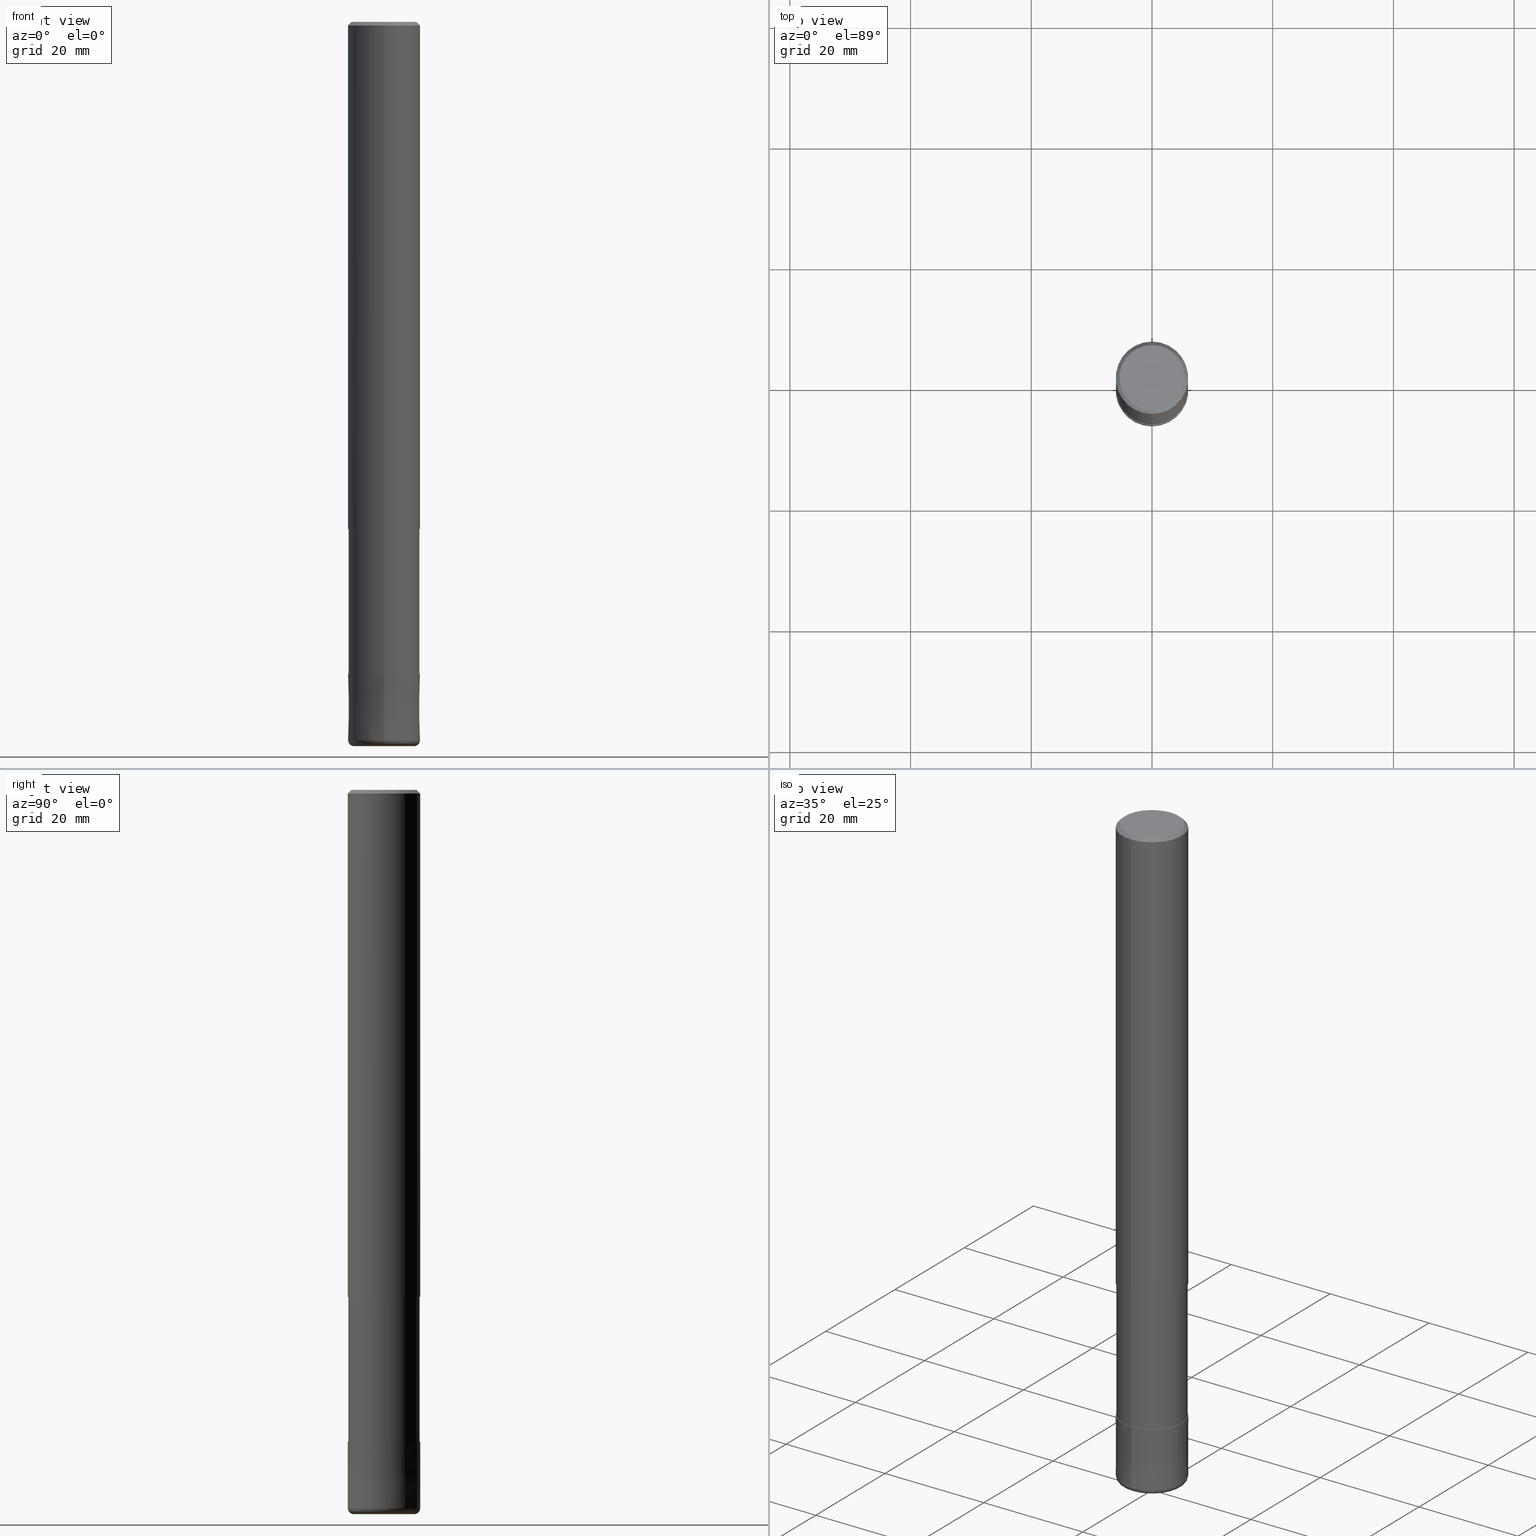
[diagram: canonical four-view strip — front | top / right | iso, engineering-drawing reading convention]
A machine part, canonical four-view strip (front | top / right | iso — engineering-drawing reading convention). The complete STEP part file that produces these views, byte-faithful:
ISO-10303-21;
HEADER;
FILE_DESCRIPTION(('no description'),'unknown implementation level');
FILE_NAME('HRRS4120-10-36-Huellk.stp','  ',('CIMSOURCE GmbH'),('CADClick - KiM GmbH - www.kimweb.de'),'unknown preprocess','ACIS','unknown authorization');
FILE_SCHEMA(('automotive_design'));
ENDSEC;
DATA;
#1=MECHANICAL_DESIGN_GEOMETRIC_PRESENTATION_REPRESENTATION(' ',(#14,#15,#16,#17,#18,#19,#20,#21,#22,#23,#24,#25,#26,#27,#28,#29,#30,#31,#32,#33,#34,#35,#36,#37,#38,#39,#40,#41,#42,#43,#44,#45,#46,#47,#48,#49,#50,#51,#52,#53,#54,#55,#56,#57,#58,#59,#60,#61,#62,#63,#64,#65,#66,#67,#68,#69,#70,#71,#72),#10);
#2=PRODUCT_DEFINITION_CONTEXT('',#73,'design');
#3=APPLICATION_PROTOCOL_DEFINITION('INTERNATIONAL STANDARD','automotive_design',1994,#73);
#4=PRODUCT_CATEGORY_RELATIONSHIP('NONE','NONE',#74,#75);
#5=SHAPE_DEFINITION_REPRESENTATION(#76,#77);
#6=PRODUCT_DEFINITION_CONTEXT('',#78,'design');
#7=APPLICATION_PROTOCOL_DEFINITION('INTERNATIONAL STANDARD','automotive_design',1994,#78);
#8=PRODUCT_CATEGORY_RELATIONSHIP('NONE','NONE',#79,#80);
#9=SHAPE_DEFINITION_REPRESENTATION(#81,#82);
#10= (GEOMETRIC_REPRESENTATION_CONTEXT(3)GLOBAL_UNCERTAINTY_ASSIGNED_CONTEXT((#85))GLOBAL_UNIT_ASSIGNED_CONTEXT((#87,#88,#89))REPRESENTATION_CONTEXT('NONE','WORKSPACE'));
#14=STYLED_ITEM('',(#91),#92);
#15=STYLED_ITEM('',(#93),#94);
#16=STYLED_ITEM('',(#95),#96);
#17=STYLED_ITEM('',(#97),#98);
#18=STYLED_ITEM('',(#99),#100);
#19=STYLED_ITEM('',(#101),#102);
#20=STYLED_ITEM('',(#103),#104);
#21=STYLED_ITEM('',(#105),#106);
#22=STYLED_ITEM('',(#107),#108);
#23=STYLED_ITEM('',(#109),#110);
#24=STYLED_ITEM('',(#111),#112);
#25=STYLED_ITEM('',(#113),#114);
#26=STYLED_ITEM('',(#115),#116);
#27=STYLED_ITEM('',(#117),#118);
#28=STYLED_ITEM('',(#119),#120);
#29=STYLED_ITEM('',(#121),#122);
#30=STYLED_ITEM('',(#123),#124);
#31=STYLED_ITEM('',(#125),#126);
#32=STYLED_ITEM('',(#127),#128);
#33=STYLED_ITEM('',(#129),#130);
#34=STYLED_ITEM('',(#131),#132);
#35=STYLED_ITEM('',(#133),#134);
#36=STYLED_ITEM('',(#135),#136);
#37=STYLED_ITEM('',(#137),#138);
#38=STYLED_ITEM('',(#139),#140);
#39=STYLED_ITEM('',(#141),#142);
#40=STYLED_ITEM('',(#143),#144);
#41=STYLED_ITEM('',(#145),#146);
#42=STYLED_ITEM('',(#147),#148);
#43=STYLED_ITEM('',(#149),#150);
#44=STYLED_ITEM('',(#151),#152);
#45=STYLED_ITEM('',(#153),#154);
#46=STYLED_ITEM('',(#155),#156);
#47=STYLED_ITEM('',(#157),#158);
#48=STYLED_ITEM('',(#159),#160);
#49=STYLED_ITEM('',(#161),#162);
#50=STYLED_ITEM('',(#163),#164);
#51=STYLED_ITEM('',(#165),#166);
#52=STYLED_ITEM('',(#167),#168);
#53=STYLED_ITEM('',(#169),#170);
#54=STYLED_ITEM('',(#171),#172);
#55=STYLED_ITEM('',(#173),#174);
#56=STYLED_ITEM('',(#175),#176);
#57=STYLED_ITEM('',(#177),#178);
#58=STYLED_ITEM('',(#179),#180);
#59=STYLED_ITEM('',(#181),#182);
#60=STYLED_ITEM('',(#183),#184);
#61=STYLED_ITEM('',(#185),#186);
#62=STYLED_ITEM('',(#187),#188);
#63=STYLED_ITEM('',(#189),#190);
#64=STYLED_ITEM('',(#191),#192);
#65=STYLED_ITEM('',(#193),#194);
#66=STYLED_ITEM('',(#195),#196);
#67=STYLED_ITEM('',(#197),#198);
#68=STYLED_ITEM('',(#199),#200);
#69=STYLED_ITEM('',(#201),#202);
#70=STYLED_ITEM('',(#203),#204);
#71=STYLED_ITEM('',(#205),#206);
#72=STYLED_ITEM('',(#207),#208);
#73=APPLICATION_CONTEXT(' ');
#74=PRODUCT_CATEGORY('part','NONE');
#75=PRODUCT_RELATED_PRODUCT_CATEGORY('detail',' ',(#209));
#76=PRODUCT_DEFINITION_SHAPE('NONE','NONE',#210);
#77=ADVANCED_BREP_SHAPE_REPRESENTATION('1',(#100,#211),#10);
#78=APPLICATION_CONTEXT(' ');
#79=PRODUCT_CATEGORY('part','NONE');
#80=PRODUCT_RELATED_PRODUCT_CATEGORY('detail',' ',(#212));
#81=PRODUCT_DEFINITION_SHAPE('NONE','NONE',#213);
#82=ADVANCED_BREP_SHAPE_REPRESENTATION('2',(#170,#214),#10);
#85=UNCERTAINTY_MEASURE_WITH_UNIT(LENGTH_MEASURE(1.0E-006),#87,'','');
#87= (CONVERSION_BASED_UNIT('MILLIMETRE',#217)LENGTH_UNIT()NAMED_UNIT(#220));
#88= (NAMED_UNIT(#222)PLANE_ANGLE_UNIT()SI_UNIT($,.RADIAN.));
#89= (NAMED_UNIT(#222)SOLID_ANGLE_UNIT()SI_UNIT($,.STERADIAN.));
#91=PRESENTATION_STYLE_ASSIGNMENT((#228));
#92=EDGE_CURVE('',#104,#204,#229,.T.);
#93=PRESENTATION_STYLE_ASSIGNMENT((#230));
#94=EDGE_CURVE('',#120,#98,#231,.T.);
#95=PRESENTATION_STYLE_ASSIGNMENT((#232));
#96=EDGE_CURVE('',#98,#120,#233,.T.);
#97=PRESENTATION_STYLE_ASSIGNMENT((#234));
#98=VERTEX_POINT('',#235);
#99=PRESENTATION_STYLE_ASSIGNMENT((#236));
#100=MANIFOLD_SOLID_BREP('1',#237);
#101=PRESENTATION_STYLE_ASSIGNMENT((#238));
#102=EDGE_CURVE('',#120,#204,#239,.T.);
#103=PRESENTATION_STYLE_ASSIGNMENT((#240));
#104=VERTEX_POINT('',#241);
#105=PRESENTATION_STYLE_ASSIGNMENT((#242));
#106=ADVANCED_FACE('',(#243),#244,.T.);
#107=PRESENTATION_STYLE_ASSIGNMENT((#245));
#108=EDGE_CURVE('',#204,#104,#246,.T.);
#109=PRESENTATION_STYLE_ASSIGNMENT((#247));
#110=ADVANCED_FACE('',(#248),#249,.T.);
#111=PRESENTATION_STYLE_ASSIGNMENT((#250));
#112=EDGE_CURVE('',#206,#152,#251,.T.);
#113=PRESENTATION_STYLE_ASSIGNMENT((#252));
#114=EDGE_CURVE('',#150,#158,#253,.T.);
#115=PRESENTATION_STYLE_ASSIGNMENT((#254));
#116=VERTEX_POINT('',#255);
#117=PRESENTATION_STYLE_ASSIGNMENT((#256));
#118=ADVANCED_FACE('',(#257,#258),#259,.T.);
#119=PRESENTATION_STYLE_ASSIGNMENT((#260));
#120=VERTEX_POINT('',#261);
#121=PRESENTATION_STYLE_ASSIGNMENT((#262));
#122=VERTEX_POINT('',#263);
#123=PRESENTATION_STYLE_ASSIGNMENT((#264));
#124=EDGE_CURVE('',#152,#206,#265,.T.);
#125=PRESENTATION_STYLE_ASSIGNMENT((#266));
#126=ADVANCED_FACE('',(#267),#268,.T.);
#127=PRESENTATION_STYLE_ASSIGNMENT((#269));
#128=ADVANCED_FACE('',(#270),#271,.T.);
#129=PRESENTATION_STYLE_ASSIGNMENT((#272));
#130=VERTEX_POINT('',#273);
#131=PRESENTATION_STYLE_ASSIGNMENT((#274));
#132=ADVANCED_FACE('',(#275),#276,.T.);
#133=PRESENTATION_STYLE_ASSIGNMENT((#277));
#134=VERTEX_POINT('',#278);
#135=PRESENTATION_STYLE_ASSIGNMENT((#279));
#136=EDGE_CURVE('',#150,#122,#280,.T.);
#137=PRESENTATION_STYLE_ASSIGNMENT((#281));
#138=EDGE_CURVE('',#134,#122,#282,.T.);
#139=PRESENTATION_STYLE_ASSIGNMENT((#283));
#140=ADVANCED_FACE('',(#284),#285,.T.);
#141=PRESENTATION_STYLE_ASSIGNMENT((#286));
#142=VERTEX_POINT('',#287);
#143=PRESENTATION_STYLE_ASSIGNMENT((#288));
#144=ADVANCED_FACE('',(#289),#290,.T.);
#145=PRESENTATION_STYLE_ASSIGNMENT((#291));
#146=EDGE_CURVE('',#104,#98,#292,.T.);
#147=PRESENTATION_STYLE_ASSIGNMENT((#293));
#148=EDGE_CURVE('',#190,#178,#294,.T.);
#149=PRESENTATION_STYLE_ASSIGNMENT((#295));
#150=VERTEX_POINT('',#296);
#151=PRESENTATION_STYLE_ASSIGNMENT((#297));
#152=VERTEX_POINT('',#298);
#153=PRESENTATION_STYLE_ASSIGNMENT((#299));
#154=EDGE_CURVE('',#116,#120,#300,.T.);
#155=PRESENTATION_STYLE_ASSIGNMENT((#301));
#156=EDGE_CURVE('',#190,#206,#302,.T.);
#157=PRESENTATION_STYLE_ASSIGNMENT((#303));
#158=VERTEX_POINT('',#304);
#159=PRESENTATION_STYLE_ASSIGNMENT((#305));
#160=EDGE_CURVE('',#130,#168,#306,.T.);
#161=PRESENTATION_STYLE_ASSIGNMENT((#307));
#162=ADVANCED_FACE('',(#308),#309,.T.);
#163=PRESENTATION_STYLE_ASSIGNMENT((#310));
#164=EDGE_CURVE('',#134,#168,#311,.T.);
#165=PRESENTATION_STYLE_ASSIGNMENT((#312));
#166=ADVANCED_FACE('',(#313),#314,.T.);
#167=PRESENTATION_STYLE_ASSIGNMENT((#315));
#168=VERTEX_POINT('',#316);
#169=PRESENTATION_STYLE_ASSIGNMENT((#317));
#170=MANIFOLD_SOLID_BREP('2',#318);
#171=PRESENTATION_STYLE_ASSIGNMENT((#319));
#172=ADVANCED_FACE('',(#320),#321,.T.);
#173=PRESENTATION_STYLE_ASSIGNMENT((#322));
#174=EDGE_CURVE('',#152,#178,#323,.T.);
#175=PRESENTATION_STYLE_ASSIGNMENT((#324));
#176=EDGE_CURVE('',#116,#142,#325,.T.);
#177=PRESENTATION_STYLE_ASSIGNMENT((#326));
#178=VERTEX_POINT('',#327);
#179=PRESENTATION_STYLE_ASSIGNMENT((#328));
#180=EDGE_CURVE('',#98,#142,#329,.T.);
#181=PRESENTATION_STYLE_ASSIGNMENT((#330));
#182=ADVANCED_FACE('',(#331),#332,.T.);
#183=PRESENTATION_STYLE_ASSIGNMENT((#333));
#184=EDGE_CURVE('',#142,#116,#334,.T.);
#185=PRESENTATION_STYLE_ASSIGNMENT((#335));
#186=ADVANCED_FACE('',(#336),#337,.T.);
#187=PRESENTATION_STYLE_ASSIGNMENT((#338));
#188=EDGE_CURVE('',#178,#190,#339,.T.);
#189=PRESENTATION_STYLE_ASSIGNMENT((#340));
#190=VERTEX_POINT('',#341);
#191=PRESENTATION_STYLE_ASSIGNMENT((#342));
#192=EDGE_CURVE('',#158,#150,#343,.T.);
#193=PRESENTATION_STYLE_ASSIGNMENT((#344));
#194=EDGE_CURVE('',#168,#130,#345,.T.);
#195=PRESENTATION_STYLE_ASSIGNMENT((#346));
#196=EDGE_CURVE('',#122,#134,#347,.T.);
#197=PRESENTATION_STYLE_ASSIGNMENT((#348));
#198=ADVANCED_FACE('',(#349),#350,.T.);
#199=PRESENTATION_STYLE_ASSIGNMENT((#351));
#200=EDGE_CURVE('',#130,#122,#352,.T.);
#201=PRESENTATION_STYLE_ASSIGNMENT((#353));
#202=EDGE_CURVE('',#134,#158,#354,.T.);
#203=PRESENTATION_STYLE_ASSIGNMENT((#355));
#204=VERTEX_POINT('',#356);
#205=PRESENTATION_STYLE_ASSIGNMENT((#357));
#206=VERTEX_POINT('',#358);
#207=PRESENTATION_STYLE_ASSIGNMENT((#359));
#208=ADVANCED_FACE('',(#360),#361,.T.);
#209=PRODUCT('1','1','PART-1-DESC',(#362));
#210=PRODUCT_DEFINITION('NONE','NONE',#363,#2);
#211=AXIS2_PLACEMENT_3D('',#364,#365,#366);
#212=PRODUCT('2','2','PART-2-DESC',(#367));
#213=PRODUCT_DEFINITION('NONE','NONE',#368,#6);
#214=AXIS2_PLACEMENT_3D('',#369,#370,#371);
#217=LENGTH_MEASURE_WITH_UNIT(LENGTH_MEASURE(1.0),#372);
#220=DIMENSIONAL_EXPONENTS(1.0,0.0,0.0,0.0,0.0,0.0,0.0);
#222=DIMENSIONAL_EXPONENTS(0.0,0.0,0.0,0.0,0.0,0.0,0.0);
#228=CURVE_STYLE('',#373,POSITIVE_LENGTH_MEASURE(1.0E-006),#374);
#229=CIRCLE('',#375,5.4);
#230=CURVE_STYLE('',#376,POSITIVE_LENGTH_MEASURE(1.0E-006),#377);
#231=CIRCLE('',#378,6.0);
#232=CURVE_STYLE('',#379,POSITIVE_LENGTH_MEASURE(1.0E-006),#380);
#233=CIRCLE('',#381,6.0);
#234=POINT_STYLE(' ',#382,POSITIVE_LENGTH_MEASURE(1.0E-006),#383);
#235=CARTESIAN_POINT('',(0.0,6.0,-0.599999999999994));
#236=SURFACE_STYLE_USAGE(.BOTH.,#384);
#237=CLOSED_SHELL('',(#166,#182,#132,#118,#144,#172,#208,#128,#106));
#238=CURVE_STYLE('',#385,POSITIVE_LENGTH_MEASURE(1.0E-006),#386);
#239=LINE('',#387,#388);
#240=POINT_STYLE(' ',#389,POSITIVE_LENGTH_MEASURE(1.0E-006),#390);
#241=CARTESIAN_POINT('',(0.0,5.4,0.0));
#242=SURFACE_STYLE_USAGE(.BOTH.,#391);
#243=FACE_OUTER_BOUND('',#392,.T.);
#244=PLANE('',#393);
#245=CURVE_STYLE('',#394,POSITIVE_LENGTH_MEASURE(1.0E-006),#395);
#246=CIRCLE('',#396,5.4);
#247=SURFACE_STYLE_USAGE(.BOTH.,#397);
#248=FACE_OUTER_BOUND('',#398,.T.);
#249=TOROIDAL_SURFACE('',#399,5.0,1.0);
#250=CURVE_STYLE('',#400,POSITIVE_LENGTH_MEASURE(1.0E-006),#401);
#251=CIRCLE('',#402,5.90995);
#252=CURVE_STYLE('',#403,POSITIVE_LENGTH_MEASURE(1.0E-006),#404);
#253=CIRCLE('',#405,5.9999);
#254=POINT_STYLE(' ',#406,POSITIVE_LENGTH_MEASURE(1.0E-006),#407);
#255=CARTESIAN_POINT('',(7.34763812293426E-016,-6.0,-84.0));
#256=SURFACE_STYLE_USAGE(.BOTH.,#408);
#257=FACE_OUTER_BOUND('',#409,.T.);
#258=FACE_BOUND('',#410,.T.);
#259=PLANE('',#411);
#260=POINT_STYLE(' ',#412,POSITIVE_LENGTH_MEASURE(1.0E-006),#413);
#261=CARTESIAN_POINT('',(7.34763812293426E-016,-6.0,-0.599999999999994));
#262=POINT_STYLE(' ',#414,POSITIVE_LENGTH_MEASURE(1.0E-006),#415);
#263=CARTESIAN_POINT('',(0.0,6.0,-119.0));
#264=CURVE_STYLE('',#416,POSITIVE_LENGTH_MEASURE(1.0E-006),#417);
#265=CIRCLE('',#418,5.90995);
#266=SURFACE_STYLE_USAGE(.BOTH.,#419);
#267=FACE_OUTER_BOUND('',#420,.T.);
#268=CONICAL_SURFACE('',#421,5.99995,9.09090909063747E-006);
#269=SURFACE_STYLE_USAGE(.BOTH.,#422);
#270=FACE_OUTER_BOUND('',#423,.T.);
#271=CYLINDRICAL_SURFACE('',#424,5.90995);
#272=POINT_STYLE(' ',#425,POSITIVE_LENGTH_MEASURE(1.0E-006),#426);
#273=CARTESIAN_POINT('',(0.0,5.0,-120.0));
#274=SURFACE_STYLE_USAGE(.BOTH.,#427);
#275=FACE_OUTER_BOUND('',#428,.T.);
#276=CONICAL_SURFACE('',#429,5.7,0.785398163397453);
#277=POINT_STYLE(' ',#430,POSITIVE_LENGTH_MEASURE(1.0E-006),#431);
#278=CARTESIAN_POINT('',(7.34763812293426E-016,-6.0,-119.0));
#279=CURVE_STYLE('',#432,POSITIVE_LENGTH_MEASURE(1.0E-006),#433);
#280=LINE('',#434,#435);
#281=CURVE_STYLE('',#436,POSITIVE_LENGTH_MEASURE(1.0E-006),#437);
#282=CIRCLE('',#438,6.0);
#283=SURFACE_STYLE_USAGE(.BOTH.,#439);
#284=FACE_OUTER_BOUND('',#440,.T.);
#285=PLANE('',#441);
#286=POINT_STYLE(' ',#442,POSITIVE_LENGTH_MEASURE(1.0E-006),#443);
#287=CARTESIAN_POINT('',(0.0,6.0,-84.0));
#288=SURFACE_STYLE_USAGE(.BOTH.,#444);
#289=FACE_OUTER_BOUND('',#445,.T.);
#290=PLANE('',#446);
#291=CURVE_STYLE('',#447,POSITIVE_LENGTH_MEASURE(1.0E-006),#448);
#292=LINE('',#449,#450);
#293=CURVE_STYLE('',#451,POSITIVE_LENGTH_MEASURE(1.0E-006),#452);
#294=CIRCLE('',#453,5.90995);
#295=POINT_STYLE(' ',#454,POSITIVE_LENGTH_MEASURE(1.0E-006),#455);
#296=CARTESIAN_POINT('',(0.0,5.9999,-108.0));
#297=POINT_STYLE(' ',#456,POSITIVE_LENGTH_MEASURE(1.0E-006),#457);
#298=CARTESIAN_POINT('',(7.23736232077256E-016,-5.90995,-108.0));
#299=CURVE_STYLE('',#458,POSITIVE_LENGTH_MEASURE(1.0E-006),#459);
#300=LINE('',#460,#461);
#301=CURVE_STYLE('',#462,POSITIVE_LENGTH_MEASURE(1.0E-006),#463);
#302=LINE('',#464,#465);
#303=POINT_STYLE(' ',#466,POSITIVE_LENGTH_MEASURE(1.0E-006),#467);
#304=CARTESIAN_POINT('',(7.34751566229888E-016,-5.9999,-108.0));
#305=CURVE_STYLE('',#468,POSITIVE_LENGTH_MEASURE(1.0E-006),#469);
#306=CIRCLE('',#470,5.0);
#307=SURFACE_STYLE_USAGE(.BOTH.,#471);
#308=FACE_OUTER_BOUND('',#472,.T.);
#309=TOROIDAL_SURFACE('',#473,5.0,1.0);
#310=CURVE_STYLE('',#474,POSITIVE_LENGTH_MEASURE(1.0E-006),#475);
#311=CIRCLE('',#476,1.0);
#312=SURFACE_STYLE_USAGE(.BOTH.,#477);
#313=FACE_OUTER_BOUND('',#478,.T.);
#314=CYLINDRICAL_SURFACE('',#479,5.90995);
#315=POINT_STYLE(' ',#480,POSITIVE_LENGTH_MEASURE(1.0E-006),#481);
#316=CARTESIAN_POINT('',(6.12303176911189E-016,-5.0,-120.0));
#317=SURFACE_STYLE_USAGE(.BOTH.,#482);
#318=CLOSED_SHELL('',(#110,#186,#198,#126,#162,#140));
#319=SURFACE_STYLE_USAGE(.BOTH.,#483);
#320=FACE_OUTER_BOUND('',#484,.T.);
#321=CONICAL_SURFACE('',#485,5.7,0.785398163397453);
#322=CURVE_STYLE('',#486,POSITIVE_LENGTH_MEASURE(1.0E-006),#487);
#323=LINE('',#488,#489);
#324=CURVE_STYLE('',#490,POSITIVE_LENGTH_MEASURE(1.0E-006),#491);
#325=CIRCLE('',#492,6.0);
#326=POINT_STYLE(' ',#493,POSITIVE_LENGTH_MEASURE(1.0E-006),#494);
#327=CARTESIAN_POINT('',(7.23736232077256E-016,-5.90995,-84.0));
#328=CURVE_STYLE('',#495,POSITIVE_LENGTH_MEASURE(1.0E-006),#496);
#329=LINE('',#497,#498);
#330=SURFACE_STYLE_USAGE(.BOTH.,#499);
#331=FACE_OUTER_BOUND('',#500,.T.);
#332=CYLINDRICAL_SURFACE('',#501,6.0);
#333=CURVE_STYLE('',#502,POSITIVE_LENGTH_MEASURE(1.0E-006),#503);
#334=CIRCLE('',#504,6.0);
#335=SURFACE_STYLE_USAGE(.BOTH.,#505);
#336=FACE_OUTER_BOUND('',#506,.T.);
#337=CONICAL_SURFACE('',#507,5.99995,9.09090909063747E-006);
#338=CURVE_STYLE('',#508,POSITIVE_LENGTH_MEASURE(1.0E-006),#509);
#339=CIRCLE('',#510,5.90995);
#340=POINT_STYLE(' ',#511,POSITIVE_LENGTH_MEASURE(1.0E-006),#512);
#341=CARTESIAN_POINT('',(0.0,5.90995,-84.0));
#342=CURVE_STYLE('',#513,POSITIVE_LENGTH_MEASURE(1.0E-006),#514);
#343=CIRCLE('',#515,5.9999);
#344=CURVE_STYLE('',#516,POSITIVE_LENGTH_MEASURE(1.0E-006),#517);
#345=CIRCLE('',#518,5.0);
#346=CURVE_STYLE('',#519,POSITIVE_LENGTH_MEASURE(1.0E-006),#520);
#347=CIRCLE('',#521,6.0);
#348=SURFACE_STYLE_USAGE(.BOTH.,#522);
#349=FACE_OUTER_BOUND('',#523,.T.);
#350=PLANE('',#524);
#351=CURVE_STYLE('',#525,POSITIVE_LENGTH_MEASURE(1.0E-006),#526);
#352=CIRCLE('',#527,1.0);
#353=CURVE_STYLE('',#528,POSITIVE_LENGTH_MEASURE(1.0E-006),#529);
#354=LINE('',#530,#531);
#355=POINT_STYLE(' ',#532,POSITIVE_LENGTH_MEASURE(1.0E-006),#533);
#356=CARTESIAN_POINT('',(6.61287431064084E-016,-5.4,0.0));
#357=POINT_STYLE(' ',#534,POSITIVE_LENGTH_MEASURE(1.0E-006),#535);
#358=CARTESIAN_POINT('',(0.0,5.90995,-108.0));
#359=SURFACE_STYLE_USAGE(.BOTH.,#536);
#360=FACE_OUTER_BOUND('',#537,.T.);
#361=CYLINDRICAL_SURFACE('',#538,6.0);
#362=PRODUCT_CONTEXT('',#73,'mechanical');
#363=PRODUCT_DEFINITION_FORMATION_WITH_SPECIFIED_SOURCE(' ','NONE',#209,.NOT_KNOWN.);
#364=CARTESIAN_POINT('',(0.0,0.0,0.0));
#365=DIRECTION('',(0.0,0.0,1.0));
#366=DIRECTION('',(1.0,0.0,0.0));
#367=PRODUCT_CONTEXT('',#78,'mechanical');
#368=PRODUCT_DEFINITION_FORMATION_WITH_SPECIFIED_SOURCE(' ','NONE',#212,.NOT_KNOWN.);
#369=CARTESIAN_POINT('',(0.0,0.0,0.0));
#370=DIRECTION('',(0.0,0.0,1.0));
#371=DIRECTION('',(1.0,0.0,0.0));
#372= (NAMED_UNIT(#220)LENGTH_UNIT()SI_UNIT(.MILLI.,.METRE.));
#373=DRAUGHTING_PRE_DEFINED_CURVE_FONT('continuous');
#374=COLOUR_RGB('',0.498039215803146,0.498039215803146,0.498039215803146);
#375=AXIS2_PLACEMENT_3D('',#540,#541,#542);
#376=DRAUGHTING_PRE_DEFINED_CURVE_FONT('continuous');
#377=COLOUR_RGB('',0.498039215803146,0.498039215803146,0.498039215803146);
#378=AXIS2_PLACEMENT_3D('',#543,#544,#545);
#379=DRAUGHTING_PRE_DEFINED_CURVE_FONT('continuous');
#380=COLOUR_RGB('',0.498039215803146,0.498039215803146,0.498039215803146);
#381=AXIS2_PLACEMENT_3D('',#546,#547,#548);
#382=PRE_DEFINED_MARKER('');
#383=COLOUR_RGB('',0.498039215803146,0.498039215803146,0.498039215803146);
#384=SURFACE_SIDE_STYLE('',(#549));
#385=DRAUGHTING_PRE_DEFINED_CURVE_FONT('continuous');
#386=COLOUR_RGB('',0.498039215803146,0.498039215803146,0.498039215803146);
#387=CARTESIAN_POINT('',(6.98025621678755E-016,-5.7,-0.299999999999997));
#388=VECTOR('',#550,1.0);
#389=PRE_DEFINED_MARKER('');
#390=COLOUR_RGB('',0.498039215803146,0.498039215803146,0.498039215803146);
#391=SURFACE_SIDE_STYLE('',(#551));
#392=EDGE_LOOP('',(#552,#553));
#393=AXIS2_PLACEMENT_3D('',#554,#555,#556);
#394=DRAUGHTING_PRE_DEFINED_CURVE_FONT('continuous');
#395=COLOUR_RGB('',0.498039215803146,0.498039215803146,0.498039215803146);
#396=AXIS2_PLACEMENT_3D('',#557,#558,#559);
#397=SURFACE_SIDE_STYLE('',(#560));
#398=EDGE_LOOP('',(#561,#562,#563,#564));
#399=AXIS2_PLACEMENT_3D('',#565,#566,#567);
#400=DRAUGHTING_PRE_DEFINED_CURVE_FONT('continuous');
#401=COLOUR_RGB('',0.498039215803146,0.498039215803146,0.498039215803146);
#402=AXIS2_PLACEMENT_3D('',#568,#569,#570);
#403=DRAUGHTING_PRE_DEFINED_CURVE_FONT('continuous');
#404=COLOUR_RGB('',0.800000011920929,0.800000011920929,0.800000011920929);
#405=AXIS2_PLACEMENT_3D('',#571,#572,#573);
#406=PRE_DEFINED_MARKER('');
#407=COLOUR_RGB('',0.498039215803146,0.498039215803146,0.498039215803146);
#408=SURFACE_SIDE_STYLE('',(#574));
#409=EDGE_LOOP('',(#575,#576));
#410=EDGE_LOOP('',(#577,#578));
#411=AXIS2_PLACEMENT_3D('',#579,#580,#581);
#412=PRE_DEFINED_MARKER('');
#413=COLOUR_RGB('',0.498039215803146,0.498039215803146,0.498039215803146);
#414=PRE_DEFINED_MARKER('');
#415=COLOUR_RGB('',0.800000011920929,0.800000011920929,0.800000011920929);
#416=DRAUGHTING_PRE_DEFINED_CURVE_FONT('continuous');
#417=COLOUR_RGB('',0.498039215803146,0.498039215803146,0.498039215803146);
#418=AXIS2_PLACEMENT_3D('',#582,#583,#584);
#419=SURFACE_SIDE_STYLE('',(#585));
#420=EDGE_LOOP('',(#586,#587,#588,#589));
#421=AXIS2_PLACEMENT_3D('',#590,#591,#592);
#422=SURFACE_SIDE_STYLE('',(#593));
#423=EDGE_LOOP('',(#594,#595,#596,#597));
#424=AXIS2_PLACEMENT_3D('',#598,#599,#600);
#425=PRE_DEFINED_MARKER('');
#426=COLOUR_RGB('',0.800000011920929,0.800000011920929,0.800000011920929);
#427=SURFACE_SIDE_STYLE('',(#601));
#428=EDGE_LOOP('',(#602,#603,#604,#605));
#429=AXIS2_PLACEMENT_3D('',#606,#607,#608);
#430=PRE_DEFINED_MARKER('');
#431=COLOUR_RGB('',0.800000011920929,0.800000011920929,0.800000011920929);
#432=DRAUGHTING_PRE_DEFINED_CURVE_FONT('continuous');
#433=COLOUR_RGB('',0.800000011920929,0.800000011920929,0.800000011920929);
#434=CARTESIAN_POINT('',(-7.34757689261658E-016,5.99995,-113.5));
#435=VECTOR('',#609,1.0);
#436=DRAUGHTING_PRE_DEFINED_CURVE_FONT('continuous');
#437=COLOUR_RGB('',0.800000011920929,0.800000011920929,0.800000011920929);
#438=AXIS2_PLACEMENT_3D('',#610,#611,#612);
#439=SURFACE_SIDE_STYLE('',(#613));
#440=EDGE_LOOP('',(#614,#615));
#441=AXIS2_PLACEMENT_3D('',#616,#617,#618);
#442=PRE_DEFINED_MARKER('');
#443=COLOUR_RGB('',0.498039215803146,0.498039215803146,0.498039215803146);
#444=SURFACE_SIDE_STYLE('',(#619));
#445=EDGE_LOOP('',(#620,#621));
#446=AXIS2_PLACEMENT_3D('',#622,#623,#624);
#447=DRAUGHTING_PRE_DEFINED_CURVE_FONT('continuous');
#448=COLOUR_RGB('',0.498039215803146,0.498039215803146,0.498039215803146);
#449=CARTESIAN_POINT('',(-6.98025621678755E-016,5.7,-0.299999999999997));
#450=VECTOR('',#625,1.0);
#451=DRAUGHTING_PRE_DEFINED_CURVE_FONT('continuous');
#452=COLOUR_RGB('',0.498039215803146,0.498039215803146,0.498039215803146);
#453=AXIS2_PLACEMENT_3D('',#626,#627,#628);
#454=PRE_DEFINED_MARKER('');
#455=COLOUR_RGB('',0.800000011920929,0.800000011920929,0.800000011920929);
#456=PRE_DEFINED_MARKER('');
#457=COLOUR_RGB('',0.498039215803146,0.498039215803146,0.498039215803146);
#458=DRAUGHTING_PRE_DEFINED_CURVE_FONT('continuous');
#459=COLOUR_RGB('',0.498039215803146,0.498039215803146,0.498039215803146);
#460=CARTESIAN_POINT('',(7.34763812293426E-016,-6.0,-42.3));
#461=VECTOR('',#629,1.0);
#462=DRAUGHTING_PRE_DEFINED_CURVE_FONT('continuous');
#463=COLOUR_RGB('',0.498039215803146,0.498039215803146,0.498039215803146);
#464=CARTESIAN_POINT('',(-7.23736232077256E-016,5.90995,-96.0));
#465=VECTOR('',#630,1.0);
#466=PRE_DEFINED_MARKER('');
#467=COLOUR_RGB('',0.800000011920929,0.800000011920929,0.800000011920929);
#468=DRAUGHTING_PRE_DEFINED_CURVE_FONT('continuous');
#469=COLOUR_RGB('',0.800000011920929,0.800000011920929,0.800000011920929);
#470=AXIS2_PLACEMENT_3D('',#631,#632,#633);
#471=SURFACE_SIDE_STYLE('',(#634));
#472=EDGE_LOOP('',(#635,#636,#637,#638));
#473=AXIS2_PLACEMENT_3D('',#639,#640,#641);
#474=DRAUGHTING_PRE_DEFINED_CURVE_FONT('continuous');
#475=COLOUR_RGB('',0.800000011920929,0.800000011920929,0.800000011920929);
#476=AXIS2_PLACEMENT_3D('',#642,#643,#644);
#477=SURFACE_SIDE_STYLE('',(#645));
#478=EDGE_LOOP('',(#646,#647,#648,#649));
#479=AXIS2_PLACEMENT_3D('',#650,#651,#652);
#480=PRE_DEFINED_MARKER('');
#481=COLOUR_RGB('',0.800000011920929,0.800000011920929,0.800000011920929);
#482=SURFACE_SIDE_STYLE('',(#653));
#483=SURFACE_SIDE_STYLE('',(#654));
#484=EDGE_LOOP('',(#655,#656,#657,#658));
#485=AXIS2_PLACEMENT_3D('',#659,#660,#661);
#486=DRAUGHTING_PRE_DEFINED_CURVE_FONT('continuous');
#487=COLOUR_RGB('',0.498039215803146,0.498039215803146,0.498039215803146);
#488=CARTESIAN_POINT('',(7.23736232077256E-016,-5.90995,-96.0));
#489=VECTOR('',#662,1.0);
#490=DRAUGHTING_PRE_DEFINED_CURVE_FONT('continuous');
#491=COLOUR_RGB('',0.498039215803146,0.498039215803146,0.498039215803146);
#492=AXIS2_PLACEMENT_3D('',#663,#664,#665);
#493=PRE_DEFINED_MARKER('');
#494=COLOUR_RGB('',0.498039215803146,0.498039215803146,0.498039215803146);
#495=DRAUGHTING_PRE_DEFINED_CURVE_FONT('continuous');
#496=COLOUR_RGB('',0.498039215803146,0.498039215803146,0.498039215803146);
#497=CARTESIAN_POINT('',(-7.34763812293426E-016,6.0,-42.3));
#498=VECTOR('',#666,1.0);
#499=SURFACE_SIDE_STYLE('',(#667));
#500=EDGE_LOOP('',(#668,#669,#670,#671));
#501=AXIS2_PLACEMENT_3D('',#672,#673,#674);
#502=DRAUGHTING_PRE_DEFINED_CURVE_FONT('continuous');
#503=COLOUR_RGB('',0.498039215803146,0.498039215803146,0.498039215803146);
#504=AXIS2_PLACEMENT_3D('',#675,#676,#677);
#505=SURFACE_SIDE_STYLE('',(#678));
#506=EDGE_LOOP('',(#679,#680,#681,#682));
#507=AXIS2_PLACEMENT_3D('',#683,#684,#685);
#508=DRAUGHTING_PRE_DEFINED_CURVE_FONT('continuous');
#509=COLOUR_RGB('',0.498039215803146,0.498039215803146,0.498039215803146);
#510=AXIS2_PLACEMENT_3D('',#686,#687,#688);
#511=PRE_DEFINED_MARKER('');
#512=COLOUR_RGB('',0.498039215803146,0.498039215803146,0.498039215803146);
#513=DRAUGHTING_PRE_DEFINED_CURVE_FONT('continuous');
#514=COLOUR_RGB('',0.800000011920929,0.800000011920929,0.800000011920929);
#515=AXIS2_PLACEMENT_3D('',#689,#690,#691);
#516=DRAUGHTING_PRE_DEFINED_CURVE_FONT('continuous');
#517=COLOUR_RGB('',0.800000011920929,0.800000011920929,0.800000011920929);
#518=AXIS2_PLACEMENT_3D('',#692,#693,#694);
#519=DRAUGHTING_PRE_DEFINED_CURVE_FONT('continuous');
#520=COLOUR_RGB('',0.800000011920929,0.800000011920929,0.800000011920929);
#521=AXIS2_PLACEMENT_3D('',#695,#696,#697);
#522=SURFACE_SIDE_STYLE('',(#698));
#523=EDGE_LOOP('',(#699,#700));
#524=AXIS2_PLACEMENT_3D('',#701,#702,#703);
#525=DRAUGHTING_PRE_DEFINED_CURVE_FONT('continuous');
#526=COLOUR_RGB('',0.800000011920929,0.800000011920929,0.800000011920929);
#527=AXIS2_PLACEMENT_3D('',#704,#705,#706);
#528=DRAUGHTING_PRE_DEFINED_CURVE_FONT('continuous');
#529=COLOUR_RGB('',0.800000011920929,0.800000011920929,0.800000011920929);
#530=CARTESIAN_POINT('',(7.34757689261657E-016,-5.99995,-113.5));
#531=VECTOR('',#707,1.0);
#532=PRE_DEFINED_MARKER('');
#533=COLOUR_RGB('',0.498039215803146,0.498039215803146,0.498039215803146);
#534=PRE_DEFINED_MARKER('');
#535=COLOUR_RGB('',0.498039215803146,0.498039215803146,0.498039215803146);
#536=SURFACE_SIDE_STYLE('',(#708));
#537=EDGE_LOOP('',(#709,#710,#711,#712));
#538=AXIS2_PLACEMENT_3D('',#713,#714,#715);
#540=CARTESIAN_POINT('',(0.0,0.0,0.0));
#541=DIRECTION('',(0.0,0.0,-1.0));
#542=DIRECTION('',(0.0,1.0,0.0));
#543=CARTESIAN_POINT('',(0.0,0.0,-0.599999999999994));
#544=DIRECTION('',(0.0,0.0,-1.0));
#545=DIRECTION('',(0.0,1.0,0.0));
#546=CARTESIAN_POINT('',(0.0,0.0,-0.599999999999994));
#547=DIRECTION('',(0.0,0.0,-1.0));
#548=DIRECTION('',(0.0,1.0,0.0));
#549=SURFACE_STYLE_FILL_AREA(#716);
#550=DIRECTION('',(-8.65927457071939E-017,0.707106781186551,0.707106781186544));
#551=SURFACE_STYLE_FILL_AREA(#717);
#552=ORIENTED_EDGE('',*,*,#112,.T.);
#553=ORIENTED_EDGE('',*,*,#124,.T.);
#554=CARTESIAN_POINT('',(0.0,2.954975,-108.0));
#555=DIRECTION('',(0.0,0.0,-1.0));
#556=DIRECTION('',(0.0,1.0,0.0));
#557=CARTESIAN_POINT('',(0.0,0.0,0.0));
#558=DIRECTION('',(0.0,0.0,-1.0));
#559=DIRECTION('',(0.0,1.0,0.0));
#560=SURFACE_STYLE_FILL_AREA(#718);
#561=ORIENTED_EDGE('',*,*,#164,.F.);
#562=ORIENTED_EDGE('',*,*,#138,.T.);
#563=ORIENTED_EDGE('',*,*,#200,.F.);
#564=ORIENTED_EDGE('',*,*,#194,.F.);
#565=CARTESIAN_POINT('',(0.0,0.0,-119.0));
#566=DIRECTION('',(0.0,0.0,-1.0));
#567=DIRECTION('',(0.0,-1.0,0.0));
#568=CARTESIAN_POINT('',(0.0,0.0,-108.0));
#569=DIRECTION('',(0.0,0.0,-1.0));
#570=DIRECTION('',(0.0,1.0,0.0));
#571=CARTESIAN_POINT('',(0.0,0.0,-108.0));
#572=DIRECTION('',(0.0,0.0,-1.0));
#573=DIRECTION('',(0.0,1.0,0.0));
#574=SURFACE_STYLE_FILL_AREA(#719);
#575=ORIENTED_EDGE('',*,*,#184,.T.);
#576=ORIENTED_EDGE('',*,*,#176,.T.);
#577=ORIENTED_EDGE('',*,*,#148,.F.);
#578=ORIENTED_EDGE('',*,*,#188,.F.);
#579=CARTESIAN_POINT('',(0.0,3.0,-84.0));
#580=DIRECTION('',(0.0,0.0,-1.0));
#581=DIRECTION('',(0.0,1.0,0.0));
#582=CARTESIAN_POINT('',(0.0,0.0,-108.0));
#583=DIRECTION('',(0.0,0.0,-1.0));
#584=DIRECTION('',(0.0,1.0,0.0));
#585=SURFACE_STYLE_FILL_AREA(#720);
#586=ORIENTED_EDGE('',*,*,#136,.T.);
#587=ORIENTED_EDGE('',*,*,#138,.F.);
#588=ORIENTED_EDGE('',*,*,#202,.T.);
#589=ORIENTED_EDGE('',*,*,#192,.T.);
#590=CARTESIAN_POINT('',(0.0,0.0,-113.5));
#591=DIRECTION('',(0.0,-0.0,-1.0));
#592=DIRECTION('',(0.0,1.0,0.0));
#593=SURFACE_STYLE_FILL_AREA(#721);
#594=ORIENTED_EDGE('',*,*,#156,.T.);
#595=ORIENTED_EDGE('',*,*,#124,.F.);
#596=ORIENTED_EDGE('',*,*,#174,.T.);
#597=ORIENTED_EDGE('',*,*,#188,.T.);
#598=CARTESIAN_POINT('',(0.0,0.0,-96.0));
#599=DIRECTION('',(-0.0,-0.0,1.0));
#600=DIRECTION('',(0.0,1.0,0.0));
#601=SURFACE_STYLE_FILL_AREA(#722);
#602=ORIENTED_EDGE('',*,*,#146,.F.);
#603=ORIENTED_EDGE('',*,*,#92,.T.);
#604=ORIENTED_EDGE('',*,*,#102,.F.);
#605=ORIENTED_EDGE('',*,*,#96,.F.);
#606=CARTESIAN_POINT('',(0.0,0.0,-0.299999999999997));
#607=DIRECTION('',(0.0,-0.0,-1.0));
#608=DIRECTION('',(0.0,1.0,0.0));
#609=DIRECTION('',(-1.11327850342629E-021,9.09090909051225E-006,-0.999999999958678));
#610=CARTESIAN_POINT('',(0.0,0.0,-119.0));
#611=DIRECTION('',(0.0,0.0,-1.0));
#612=DIRECTION('',(0.0,1.0,0.0));
#613=SURFACE_STYLE_FILL_AREA(#723);
#614=ORIENTED_EDGE('',*,*,#160,.T.);
#615=ORIENTED_EDGE('',*,*,#194,.T.);
#616=CARTESIAN_POINT('',(0.0,2.5,-120.0));
#617=DIRECTION('',(0.0,0.0,-1.0));
#618=DIRECTION('',(0.0,1.0,0.0));
#619=SURFACE_STYLE_FILL_AREA(#724);
#620=ORIENTED_EDGE('',*,*,#92,.F.);
#621=ORIENTED_EDGE('',*,*,#108,.F.);
#622=CARTESIAN_POINT('',(0.0,2.7,0.0));
#623=DIRECTION('',(-0.0,0.0,1.0));
#624=DIRECTION('',(0.0,-1.0,0.0));
#625=DIRECTION('',(-8.65927457071939E-017,0.707106781186551,-0.707106781186544));
#626=CARTESIAN_POINT('',(0.0,0.0,-84.0));
#627=DIRECTION('',(0.0,0.0,-1.0));
#628=DIRECTION('',(0.0,1.0,0.0));
#629=DIRECTION('',(-0.0,-0.0,1.0));
#630=DIRECTION('',(0.0,0.0,-1.0));
#631=CARTESIAN_POINT('',(0.0,0.0,-120.0));
#632=DIRECTION('',(0.0,0.0,-1.0));
#633=DIRECTION('',(0.0,1.0,0.0));
#634=SURFACE_STYLE_FILL_AREA(#725);
#635=ORIENTED_EDGE('',*,*,#164,.T.);
#636=ORIENTED_EDGE('',*,*,#160,.F.);
#637=ORIENTED_EDGE('',*,*,#200,.T.);
#638=ORIENTED_EDGE('',*,*,#196,.T.);
#639=CARTESIAN_POINT('',(0.0,0.0,-119.0));
#640=DIRECTION('',(0.0,0.0,-1.0));
#641=DIRECTION('',(0.0,-1.0,0.0));
#642=CARTESIAN_POINT('',(6.12303176911188E-016,-5.0,-119.0));
#643=DIRECTION('',(1.0,1.22460635382238E-016,0.0));
#644=DIRECTION('',(1.22460635382238E-016,-1.0,-0.0));
#645=SURFACE_STYLE_FILL_AREA(#726);
#646=ORIENTED_EDGE('',*,*,#156,.F.);
#647=ORIENTED_EDGE('',*,*,#148,.T.);
#648=ORIENTED_EDGE('',*,*,#174,.F.);
#649=ORIENTED_EDGE('',*,*,#112,.F.);
#650=CARTESIAN_POINT('',(0.0,0.0,-96.0));
#651=DIRECTION('',(-0.0,-0.0,1.0));
#652=DIRECTION('',(0.0,1.0,0.0));
#653=SURFACE_STYLE_FILL_AREA(#727);
#654=SURFACE_STYLE_FILL_AREA(#728);
#655=ORIENTED_EDGE('',*,*,#146,.T.);
#656=ORIENTED_EDGE('',*,*,#94,.F.);
#657=ORIENTED_EDGE('',*,*,#102,.T.);
#658=ORIENTED_EDGE('',*,*,#108,.T.);
#659=CARTESIAN_POINT('',(0.0,0.0,-0.299999999999997));
#660=DIRECTION('',(0.0,-0.0,-1.0));
#661=DIRECTION('',(0.0,1.0,0.0));
#662=DIRECTION('',(-0.0,-0.0,1.0));
#663=CARTESIAN_POINT('',(0.0,0.0,-84.0));
#664=DIRECTION('',(0.0,0.0,-1.0));
#665=DIRECTION('',(0.0,1.0,0.0));
#666=DIRECTION('',(0.0,0.0,-1.0));
#667=SURFACE_STYLE_FILL_AREA(#729);
#668=ORIENTED_EDGE('',*,*,#180,.F.);
#669=ORIENTED_EDGE('',*,*,#96,.T.);
#670=ORIENTED_EDGE('',*,*,#154,.F.);
#671=ORIENTED_EDGE('',*,*,#184,.F.);
#672=CARTESIAN_POINT('',(0.0,0.0,-42.3));
#673=DIRECTION('',(-0.0,-0.0,1.0));
#674=DIRECTION('',(0.0,1.0,0.0));
#675=CARTESIAN_POINT('',(0.0,0.0,-84.0));
#676=DIRECTION('',(0.0,0.0,-1.0));
#677=DIRECTION('',(0.0,1.0,0.0));
#678=SURFACE_STYLE_FILL_AREA(#730);
#679=ORIENTED_EDGE('',*,*,#136,.F.);
#680=ORIENTED_EDGE('',*,*,#114,.T.);
#681=ORIENTED_EDGE('',*,*,#202,.F.);
#682=ORIENTED_EDGE('',*,*,#196,.F.);
#683=CARTESIAN_POINT('',(0.0,0.0,-113.5));
#684=DIRECTION('',(0.0,-0.0,-1.0));
#685=DIRECTION('',(0.0,1.0,0.0));
#686=CARTESIAN_POINT('',(0.0,0.0,-84.0));
#687=DIRECTION('',(0.0,0.0,-1.0));
#688=DIRECTION('',(0.0,1.0,0.0));
#689=CARTESIAN_POINT('',(0.0,0.0,-108.0));
#690=DIRECTION('',(0.0,0.0,-1.0));
#691=DIRECTION('',(0.0,1.0,0.0));
#692=CARTESIAN_POINT('',(0.0,0.0,-120.0));
#693=DIRECTION('',(0.0,0.0,-1.0));
#694=DIRECTION('',(0.0,1.0,0.0));
#695=CARTESIAN_POINT('',(0.0,0.0,-119.0));
#696=DIRECTION('',(0.0,0.0,-1.0));
#697=DIRECTION('',(0.0,1.0,0.0));
#698=SURFACE_STYLE_FILL_AREA(#731);
#699=ORIENTED_EDGE('',*,*,#114,.F.);
#700=ORIENTED_EDGE('',*,*,#192,.F.);
#701=CARTESIAN_POINT('',(0.0,2.99995,-108.0));
#702=DIRECTION('',(-0.0,0.0,1.0));
#703=DIRECTION('',(0.0,-1.0,0.0));
#704=CARTESIAN_POINT('',(-6.12303176911188E-016,5.0,-119.0));
#705=DIRECTION('',(1.0,1.22460635382238E-016,0.0));
#706=DIRECTION('',(-1.22460635382238E-016,1.0,0.0));
#707=DIRECTION('',(-1.11327850342629E-021,9.09090909051225E-006,0.999999999958678));
#708=SURFACE_STYLE_FILL_AREA(#732);
#709=ORIENTED_EDGE('',*,*,#180,.T.);
#710=ORIENTED_EDGE('',*,*,#176,.F.);
#711=ORIENTED_EDGE('',*,*,#154,.T.);
#712=ORIENTED_EDGE('',*,*,#94,.T.);
#713=CARTESIAN_POINT('',(0.0,0.0,-42.3));
#714=DIRECTION('',(-0.0,-0.0,1.0));
#715=DIRECTION('',(0.0,1.0,0.0));
#716=FILL_AREA_STYLE('',(#733));
#717=FILL_AREA_STYLE('',(#734));
#718=FILL_AREA_STYLE('',(#735));
#719=FILL_AREA_STYLE('',(#736));
#720=FILL_AREA_STYLE('',(#737));
#721=FILL_AREA_STYLE('',(#738));
#722=FILL_AREA_STYLE('',(#739));
#723=FILL_AREA_STYLE('',(#740));
#724=FILL_AREA_STYLE('',(#741));
#725=FILL_AREA_STYLE('',(#742));
#726=FILL_AREA_STYLE('',(#743));
#727=FILL_AREA_STYLE('',(#744));
#728=FILL_AREA_STYLE('',(#745));
#729=FILL_AREA_STYLE('',(#746));
#730=FILL_AREA_STYLE('',(#747));
#731=FILL_AREA_STYLE('',(#748));
#732=FILL_AREA_STYLE('',(#749));
#733=FILL_AREA_STYLE_COLOUR('',#750);
#734=FILL_AREA_STYLE_COLOUR('',#751);
#735=FILL_AREA_STYLE_COLOUR('',#752);
#736=FILL_AREA_STYLE_COLOUR('',#753);
#737=FILL_AREA_STYLE_COLOUR('',#754);
#738=FILL_AREA_STYLE_COLOUR('',#755);
#739=FILL_AREA_STYLE_COLOUR('',#756);
#740=FILL_AREA_STYLE_COLOUR('',#757);
#741=FILL_AREA_STYLE_COLOUR('',#758);
#742=FILL_AREA_STYLE_COLOUR('',#759);
#743=FILL_AREA_STYLE_COLOUR('',#760);
#744=FILL_AREA_STYLE_COLOUR('',#761);
#745=FILL_AREA_STYLE_COLOUR('',#762);
#746=FILL_AREA_STYLE_COLOUR('',#763);
#747=FILL_AREA_STYLE_COLOUR('',#764);
#748=FILL_AREA_STYLE_COLOUR('',#765);
#749=FILL_AREA_STYLE_COLOUR('',#766);
#750=COLOUR_RGB('',0.498039215803146,0.498039215803146,0.498039215803146);
#751=COLOUR_RGB('',0.498039215803146,0.498039215803146,0.498039215803146);
#752=COLOUR_RGB('',0.800000011920929,0.800000011920929,0.800000011920929);
#753=COLOUR_RGB('',0.498039215803146,0.498039215803146,0.498039215803146);
#754=COLOUR_RGB('',0.800000011920929,0.800000011920929,0.800000011920929);
#755=COLOUR_RGB('',0.498039215803146,0.498039215803146,0.498039215803146);
#756=COLOUR_RGB('',0.498039215803146,0.498039215803146,0.498039215803146);
#757=COLOUR_RGB('',0.800000011920929,0.800000011920929,0.800000011920929);
#758=COLOUR_RGB('',0.498039215803146,0.498039215803146,0.498039215803146);
#759=COLOUR_RGB('',0.800000011920929,0.800000011920929,0.800000011920929);
#760=COLOUR_RGB('',0.498039215803146,0.498039215803146,0.498039215803146);
#761=COLOUR_RGB('',0.800000011920929,0.800000011920929,0.800000011920929);
#762=COLOUR_RGB('',0.498039215803146,0.498039215803146,0.498039215803146);
#763=COLOUR_RGB('',0.498039215803146,0.498039215803146,0.498039215803146);
#764=COLOUR_RGB('',0.800000011920929,0.800000011920929,0.800000011920929);
#765=COLOUR_RGB('',0.800000011920929,0.800000011920929,0.800000011920929);
#766=COLOUR_RGB('',0.498039215803146,0.498039215803146,0.498039215803146);
#767=AXIS2_PLACEMENT_3D('PCS',#768,#769,#770);
#768=CARTESIAN_POINT('',(0.0,0.0,0.0));
#769=DIRECTION('',(0.0,0.0,1.0));
#770=DIRECTION('',(1.0,0.0,0.0));
#771=AXIS2_PLACEMENT_3D('CIP',#772,#773,#774);
#772=CARTESIAN_POINT('',(0.0,0.0,-120.0));
#773=DIRECTION('',(0.0,0.0,1.0));
#774=DIRECTION('',(1.0,0.0,0.0));
#775=AXIS2_PLACEMENT_3D('CRP',#776,#777,#778);
#776=CARTESIAN_POINT('',(-6.0,0.0,-120.0));
#777=DIRECTION('',(0.0,0.0,1.0));
#778=DIRECTION('',(1.0,0.0,0.0));
#779=AXIS2_PLACEMENT_3D('MCS',#780,#781,#782);
#780=CARTESIAN_POINT('',(0.0,0.0,-84.0));
#781=DIRECTION('',(0.0,0.0,1.0));
#782=DIRECTION('',(1.0,0.0,0.0));
#783=CONSTRUCTIVE_GEOMETRY_REPRESENTATION_RELATIONSHIP('coordinate systems',$,#77,#784);
#784=CONSTRUCTIVE_GEOMETRY_REPRESENTATION('coordinate systems',(#767,#771,#775,#779),#10);
ENDSEC;
END-ISO-10303-21;
